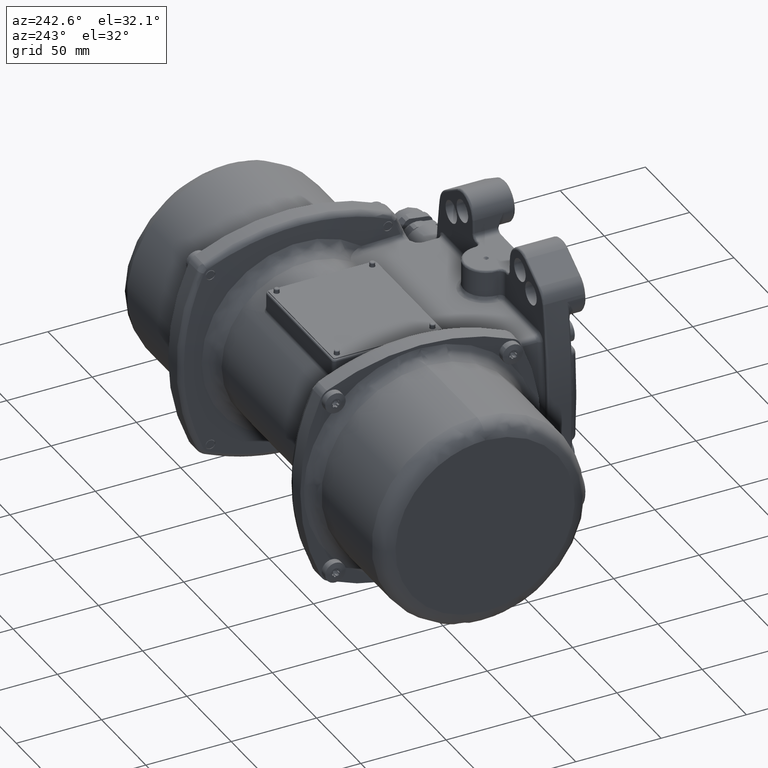
[diagram: clean part render]
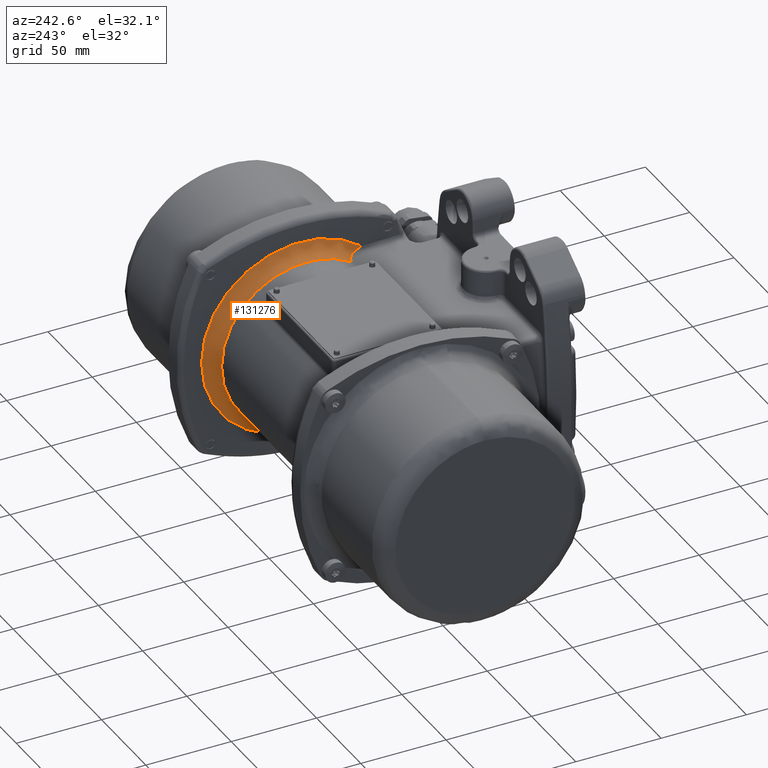
[diagram: same view with one face highlighted and labeled with its STEP entity id]
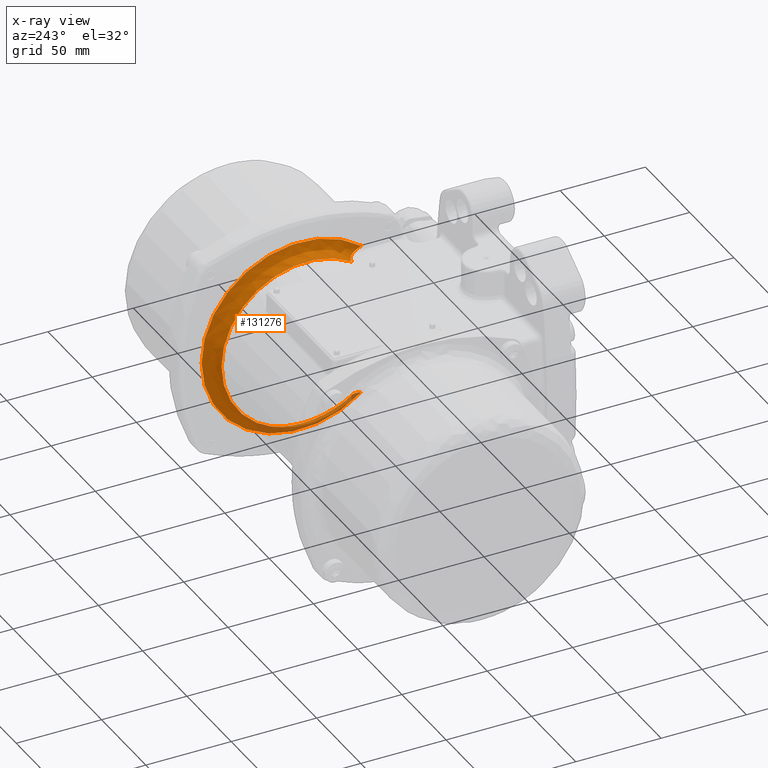
[diagram: x-ray of the same camera — body ghosted, the highlighted face saturated]
A machine part, auxiliary view. The second image highlights one B-rep face of the part: STEP entity #131276.
The next image is the same camera in x-ray: the body ghosted, the highlighted face saturated — about 10% of this face is hidden behind the body in this view.
In plain terms, the highlighted face is a freeform B-spline surface patch.
Its self-contained STEP definition (entity closure, byte-faithful):
#533 = CARTESIAN_POINT ( 'NONE',  ( 61.82296026901550300, -36.07777330603259700, 44.87763145747879900 ) ) ;
#1410 = B_SPLINE_CURVE_WITH_KNOTS ( 'NONE', 3,
 ( #533, #136314, #129562, #93349, #32254, #7309, #79816, #54870, #66275, #134089, #102468, #136406, #75379, #84364, #11848, #120585, #25527, #2882, #88900, #48170 ),
 .UNSPECIFIED., .F., .F.,
 ( 4, 2, 2, 2, 2, 2, 2, 2, 2, 4 ),
 ( 0.0000000000000000000, 0.2499999999999990800, 0.3749999999999995600, 0.5000000000000000000, 0.6249999999999995600, 0.7500000000000000000, 0.8124999999999997800, 0.8750000000000000000, 0.9375000000000000000, 1.000000000000000000 ),
 .UNSPECIFIED. ) ;
#2385 = CARTESIAN_POINT ( 'NONE',  ( 58.32792740399369100, 5.230890072572089300, -70.04264909392826200 ) ) ;
#2882 = CARTESIAN_POINT ( 'NONE',  ( 54.53011820993098300, -26.44589697557889700, 42.46088443013095300 ) ) ;
#3590 = EDGE_CURVE ( 'NONE', #4986, #48628, #20714, .T. ) ;
#3637 =( BOUNDED_SURFACE ( )  B_SPLINE_SURFACE ( 3, 3, ( 
 ( #47683, #70309, #124609, #126845, #95182, #20518, #6911 ),
 ( #115619, #2385, #88400, #135922, #81662, #49998, #68092 ),
 ( #34091, #138156, #86173, #99728, #59054, #52259, #90709 ),
 ( #13699, #131381, #92946, #27282, #111036, #25046, #104296 ) ),
 .UNSPECIFIED., .F., .F., .F. ) 
 B_SPLINE_SURFACE_WITH_KNOTS ( ( 4, 4 ),
 ( 4, 3, 4 ),
 ( 0.0000000000000000000, 1.000000000000000000 ),
 ( 0.0000000000000000000, 0.5000000000000000000, 1.000000000000000000 ),
 .UNSPECIFIED. ) 
 GEOMETRIC_REPRESENTATION_ITEM ( )  RATIONAL_B_SPLINE_SURFACE ( (
 ( 1.000000000000000000, 0.6132750828417626900, 0.6132750828417626900, 1.000000000000000000, 0.6132750828417626900, 0.6132750828417626900, 1.000000000000000000),
 ( 0.8169162473415225700, 0.5009943792631541500, 0.5009943792631541500, 0.8169162473415225700, 0.5009943792631541500, 0.5009943792631541500, 0.8169162473415225700),
 ( 0.8169162473415225700, 0.5009943792631541500, 0.5009943792631541500, 0.8169162473415225700, 0.5009943792631541500, 0.5009943792631541500, 0.8169162473415225700),
 ( 1.000000000000000000, 0.6132750828417626900, 0.6132750828417626900, 1.000000000000000000, 0.6132750828417626900, 0.6132750828417626900, 1.000000000000000000) ) ) 
 REPRESENTATION_ITEM ( '' )  SURFACE ( )  );
#4986 = VERTEX_POINT ( 'NONE', #47991 ) ;
#4998 = CARTESIAN_POINT ( 'NONE',  ( 58.46394531616449800, -28.35436769922134900, -42.95657725826600200 ) ) ;
#6911 = CARTESIAN_POINT ( 'NONE',  ( 53.83392399097888900, -32.36733879848591800, 38.10978062261745700 ) ) ;
#7309 = CARTESIAN_POINT ( 'NONE',  ( 60.46922145526428900, -30.98323078364279900, 43.62740789544424300 ) ) ;
#11848 = CARTESIAN_POINT ( 'NONE',  ( 56.16012585861020100, -26.86569019270654800, 42.57046939432660100 ) ) ;
#12211 = EDGE_LOOP ( 'NONE', ( #119015, #14962, #14584, #12995 ) ) ;
#12995 = ORIENTED_EDGE ( 'NONE', *, *, #62306, .F. ) ;
#13699 = CARTESIAN_POINT ( 'NONE',  ( 61.82296026901548900, -37.27507690591448200, -43.88822363246130500 ) ) ;
#14584 = ORIENTED_EDGE ( 'NONE', *, *, #116503, .F. ) ;
#14962 = ORIENTED_EDGE ( 'NONE', *, *, #3590, .F. ) ;
#16328 = CARTESIAN_POINT ( 'NONE',  ( 57.78677548028389300, -27.78955421541130000, -42.81057371672015000 ) ) ;
#18636 = CARTESIAN_POINT ( 'NONE',  ( 54.18578809745339700, -26.41509434332230200, -42.45283018637724800 ) ) ;
#19497 = DIRECTION ( 'NONE',  ( -1.387778780781445700E-016, -1.000000000000000000, -2.042470651928920200E-017 ) ) ;
#20518 = CARTESIAN_POINT ( 'NONE',  ( 53.83392399097889600, 5.230890072572179900, 70.04264909392826200 ) ) ;
#20714 = CIRCLE ( 'NONE', #22500, 50.00000000000000000 ) ;
#22500 = AXIS2_PLACEMENT_3D ( 'NONE', #101074, #69404, #19497 ) ;
#23123 = CARTESIAN_POINT ( 'NONE',  ( 54.53011725914740300, -26.44587876074325200, -42.46087967618059600 ) ) ;
#25046 = CARTESIAN_POINT ( 'NONE',  ( 61.82296026901548200, 6.024030302751761200, 80.66295310605775600 ) ) ;
#25527 = CARTESIAN_POINT ( 'NONE',  ( 55.20451890945810200, -26.56286989985529300, 42.49144643882230100 ) ) ;
#26063 = CARTESIAN_POINT ( 'NONE',  ( 53.83392399097889600, -26.41509433962264800, -42.45283018867925100 ) ) ;
#27282 = CARTESIAN_POINT ( 'NONE',  ( 61.82296026901548900, 57.58131235005655700, -3.459989153115961700E-014 ) ) ;
#27448 = VERTEX_POINT ( 'NONE', #70583 ) ;
#27690 = CARTESIAN_POINT ( 'NONE',  ( 61.77731003216030100, -35.00564811583160500, -44.62189610785485200 ) ) ;
#32254 = CARTESIAN_POINT ( 'NONE',  ( 60.92496772306779500, -31.94940308835100100, 43.86979676431220600 ) ) ;
#34091 = CARTESIAN_POINT ( 'NONE',  ( 61.58776230303634900, -34.36988521349472600, -40.46760821659194100 ) ) ;
#34486 = CARTESIAN_POINT ( 'NONE',  ( 60.93360986906860400, -31.97015871050200200, -43.87497986683059300 ) ) ;
#39931 = CARTESIAN_POINT ( 'NONE',  ( 61.82296026901550300, 1.110831467887629900E-014, 4.289829621321705100E-016 ) ) ;
#41273 = CARTESIAN_POINT ( 'NONE',  ( 61.82296026901550300, -36.07777330603264700, -44.87763145747874900 ) ) ;
#42931 = CIRCLE ( 'NONE', #103540, 57.58131235005650000 ) ;
#47683 = CARTESIAN_POINT ( 'NONE',  ( 53.83392399097889600, -32.36733879848596700, -38.10978062261741400 ) ) ;
#47991 = CARTESIAN_POINT ( 'NONE',  ( 53.83392399097889600, -26.41509433962264800, 42.45283018867925100 ) ) ;
#48066 = CARTESIAN_POINT ( 'NONE',  ( 57.03889949359039900, -27.27585465735640100, -42.67734574976769600 ) ) ;
#48170 = CARTESIAN_POINT ( 'NONE',  ( 53.83392399097889600, -26.41509433962264800, 42.45283018867925100 ) ) ;
#48628 = VERTEX_POINT ( 'NONE', #26063 ) ;
#49998 = CARTESIAN_POINT ( 'NONE',  ( 58.32792740399368400, 5.230890072572179900, 70.04264909392826200 ) ) ;
#52259 = CARTESIAN_POINT ( 'NONE',  ( 61.58776230303634200, 5.554521873980095700, 74.37614270345920900 ) ) ;
#54870 = CARTESIAN_POINT ( 'NONE',  ( 59.60303942420408400, -29.61057622757874700, 43.27913632421244500 ) ) ;
#57207 = CARTESIAN_POINT ( 'NONE',  ( 60.47898062679470100, -31.00158196430519900, -43.63203477930920100 ) ) ;
#59054 = CARTESIAN_POINT ( 'NONE',  ( 61.58776230303634900, 53.09346781253216100, 52.38078838976620200 ) ) ;
#59439 = CARTESIAN_POINT ( 'NONE',  ( 53.83392399097889600, -26.41509433962264800, -42.45283018867925100 ) ) ;
#62306 = EDGE_CURVE ( 'NONE', #27448, #123244, #42931, .T. ) ;
#63952 = CARTESIAN_POINT ( 'NONE',  ( 56.47250582568090500, -26.97364701183140000, -42.59863123774655200 ) ) ;
#66275 = CARTESIAN_POINT ( 'NONE',  ( 59.26052722357580600, -29.17338098220605900, 43.16727623175094000 ) ) ;
#68092 = CARTESIAN_POINT ( 'NONE',  ( 58.32792740399367700, -32.36733879848591800, 38.10978062261745000 ) ) ;
#68841 = B_SPLINE_CURVE_WITH_KNOTS ( 'NONE', 3,
 ( #59439, #18636, #23123, #111441, #97874, #63952, #48066, #16328, #127237, #4998, #131758, #118254, #84255, #97788, #57207, #34486, #136308, #113692, #27690, #41273 ),
 .UNSPECIFIED., .F., .F.,
 ( 4, 2, 2, 2, 2, 2, 2, 2, 2, 4 ),
 ( 0.0000000000000000000, 0.06250000000000029100, 0.1249999999999995600, 0.2500000000000000600, 0.3125000000000002200, 0.3749999999999996100, 0.5000000000000000000, 0.6250000000000000000, 0.7500000000000000000, 1.000000000000000000 ),
 .UNSPECIFIED. ) ;
#69404 = DIRECTION ( 'NONE',  ( -1.000000000000000000, 3.919795306784859900E-017, -6.938893903907229900E-018 ) ) ;
#70309 = CARTESIAN_POINT ( 'NONE',  ( 53.83392399097889600, 5.230890072572089300, -70.04264909392826200 ) ) ;
#70583 = CARTESIAN_POINT ( 'NONE',  ( 61.82296026901550300, -36.07777330603264700, -44.87763145747874900 ) ) ;
#75379 = CARTESIAN_POINT ( 'NONE',  ( 57.01934645485161500, -27.28431231351410300, 42.67945558976905600 ) ) ;
#79816 = CARTESIAN_POINT ( 'NONE',  ( 60.20711272088109200, -30.51487480263415000, 43.50904045496879000 ) ) ;
#81662 = CARTESIAN_POINT ( 'NONE',  ( 58.32792740399369100, 50.00000000000005000, 49.32884453386780900 ) ) ;
#84255 = CARTESIAN_POINT ( 'NONE',  ( 59.60607386245950300, -29.61432935247819700, -43.28009774665864700 ) ) ;
#84364 = CARTESIAN_POINT ( 'NONE',  ( 56.45540662645831300, -26.99394507205130400, 42.60389797980735700 ) ) ;
#86173 = CARTESIAN_POINT ( 'NONE',  ( 61.58776230303634900, 53.09346781253209000, -52.38078838976627300 ) ) ;
#88400 = CARTESIAN_POINT ( 'NONE',  ( 58.32792740399369100, 49.99999999999999300, -49.32884453386785900 ) ) ;
#88900 = CARTESIAN_POINT ( 'NONE',  ( 54.18591027879389100, -26.41509434344024500, 42.45283018630384900 ) ) ;
#90709 = CARTESIAN_POINT ( 'NONE',  ( 61.58776230303634200, -34.36988521349466900, 40.46760821659197700 ) ) ;
#92946 = CARTESIAN_POINT ( 'NONE',  ( 61.82296026901548900, 57.58131235005652100, -56.80839209944048200 ) ) ;
#93349 = CARTESIAN_POINT ( 'NONE',  ( 61.11883423353590000, -32.44921470496829800, 43.99430591386480700 ) ) ;
#95182 = CARTESIAN_POINT ( 'NONE',  ( 53.83392399097889600, 50.00000000000005000, 49.32884453386780900 ) ) ;
#97788 = CARTESIAN_POINT ( 'NONE',  ( 60.21338938439810600, -30.52507260067260100, -43.51162573017185100 ) ) ;
#97874 = CARTESIAN_POINT ( 'NONE',  ( 55.53700974743690500, -26.65041706641489900, -42.51431271372450000 ) ) ;
#99728 = CARTESIAN_POINT ( 'NONE',  ( 61.58776230303634900, 53.09346781253212600, -3.459989153115961700E-014 ) ) ;
#101074 = CARTESIAN_POINT ( 'NONE',  ( 53.83392399097889600, 8.358236632870039000E-015, 3.735478870044085000E-016 ) ) ;
#102468 = CARTESIAN_POINT ( 'NONE',  ( 58.03511440645930700, -27.95998703447585500, 42.85477601627145100 ) ) ;
#103350 = DIRECTION ( 'NONE',  ( -1.205060048253731800E-016, -1.000000000000000000, -2.042470651928920200E-017 ) ) ;
#103540 = AXIS2_PLACEMENT_3D ( 'NONE', #39931, #119146, #103350 ) ;
#103712 = EDGE_CURVE ( 'NONE', #48628, #27448, #68841, .T. ) ;
#104296 = CARTESIAN_POINT ( 'NONE',  ( 61.82296026901548200, -37.27507690591443200, 43.88822363246134700 ) ) ;
#106517 = FACE_OUTER_BOUND ( 'NONE', #12211, .T. ) ;
#109765 = CARTESIAN_POINT ( 'NONE',  ( 61.82296026901550300, -36.07777330603259700, 44.87763145747879900 ) ) ;
#111036 = CARTESIAN_POINT ( 'NONE',  ( 61.82296026901548900, 57.58131235005659200, 56.80839209944042500 ) ) ;
#111441 = CARTESIAN_POINT ( 'NONE',  ( 55.20514804962680700, -26.56299708919860000, -42.49147966499479900 ) ) ;
#113692 = CARTESIAN_POINT ( 'NONE',  ( 61.59437428924439900, -33.96853099899335100, -44.36965410314515200 ) ) ;
#115619 = CARTESIAN_POINT ( 'NONE',  ( 58.32792740399367700, -32.36733879848596700, -38.10978062261741400 ) ) ;
#116503 = EDGE_CURVE ( 'NONE', #123244, #4986, #1410, .T. ) ;
#118254 = CARTESIAN_POINT ( 'NONE',  ( 59.26376952049210400, -29.17732371687725000, -43.16828623737065100 ) ) ;
#119015 = ORIENTED_EDGE ( 'NONE', *, *, #103712, .F. ) ;
#119146 = DIRECTION ( 'NONE',  ( 1.000000000000000000, -3.919795306784859900E-017, 6.938893903907229900E-018 ) ) ;
#120585 = CARTESIAN_POINT ( 'NONE',  ( 55.53670338799189200, -26.65033542809494800, 42.51429139092455500 ) ) ;
#123244 = VERTEX_POINT ( 'NONE', #109765 ) ;
#124609 = CARTESIAN_POINT ( 'NONE',  ( 53.83392399097889600, 49.99999999999999300, -49.32884453386787300 ) ) ;
#126845 = CARTESIAN_POINT ( 'NONE',  ( 53.83392399097889600, 50.00000000000002100, -3.113044457920600300E-014 ) ) ;
#127237 = CARTESIAN_POINT ( 'NONE',  ( 58.02083396963340100, -27.97169641026765100, -42.85773060669075100 ) ) ;
#129562 = CARTESIAN_POINT ( 'NONE',  ( 61.59462941770230100, -33.96617976280200000, 44.36910031482795300 ) ) ;
#131276 = ADVANCED_FACE ( 'NONE', ( #106517 ), #3637, .F. ) ;
#131381 = CARTESIAN_POINT ( 'NONE',  ( 61.82296026901548900, 6.024030302751670600, -80.66295310605775600 ) ) ;
#131758 = CARTESIAN_POINT ( 'NONE',  ( 58.67370020536790100, -28.55575016746905000, -43.00848624807130000 ) ) ;
#134089 = CARTESIAN_POINT ( 'NONE',  ( 58.47223663386521500, -28.34406302812045600, 42.95406005526755400 ) ) ;
#135922 = CARTESIAN_POINT ( 'NONE',  ( 58.32792740399367700, 50.00000000000002800, -3.113044457920600300E-014 ) ) ;
#136308 = CARTESIAN_POINT ( 'NONE',  ( 61.12377022415439900, -32.46339375875355400, -43.99782247016634800 ) ) ;
#136314 = CARTESIAN_POINT ( 'NONE',  ( 61.77736816997840200, -35.00701351988705300, 44.62222179939475800 ) ) ;
#136406 = CARTESIAN_POINT ( 'NONE',  ( 57.28676916717801500, -27.44618402166180700, 42.72152038871556100 ) ) ;
#138156 = CARTESIAN_POINT ( 'NONE',  ( 61.58776230303634900, 5.554521873979999700, -74.37614270345923700 ) ) ;